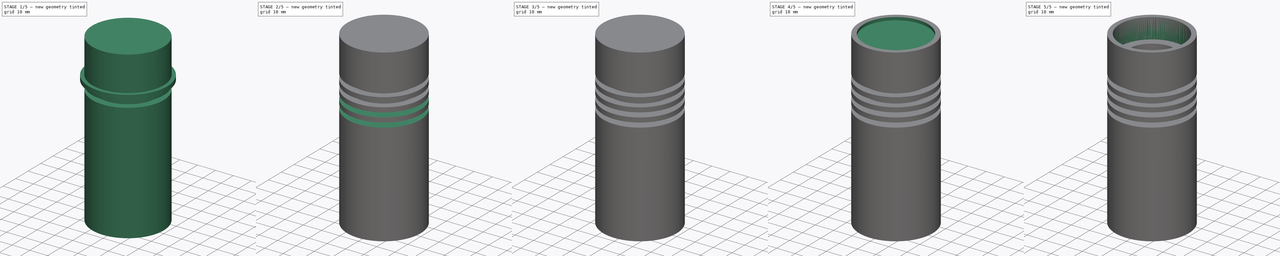
[diagram: build sequence overview — one tinted view per stage of 5, left to right]
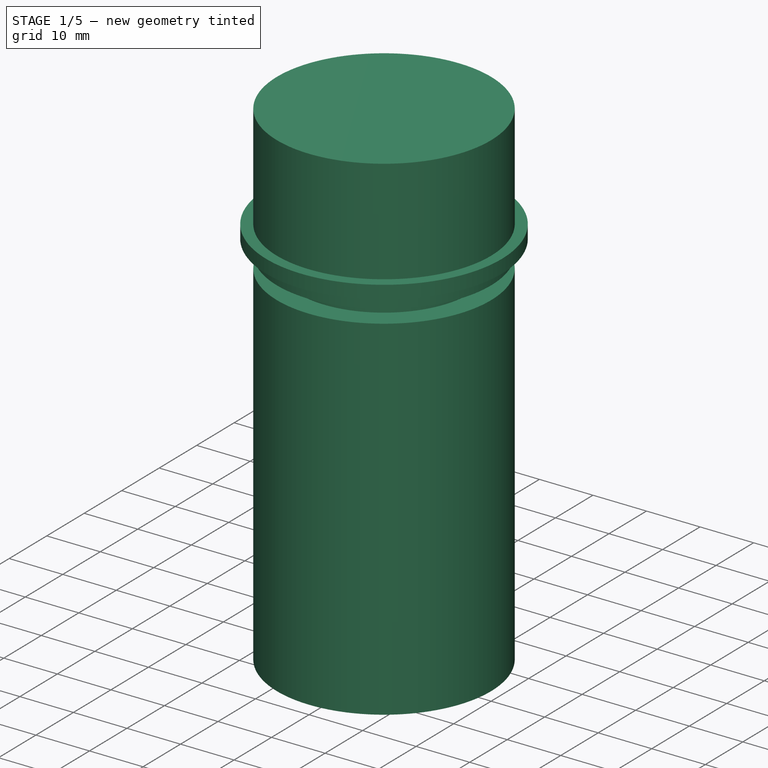
[diagram: stage 1 of 5 — iso view after this stage's code; geometry added in this stage tinted green]
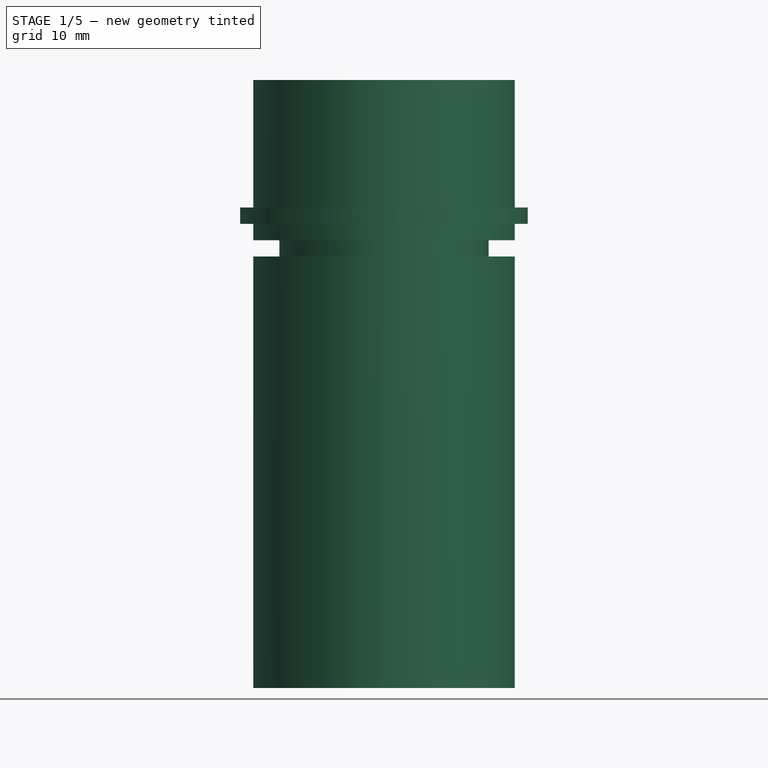
[diagram: stage 1 of 5 — front view after this stage's code; geometry added in this stage tinted green]
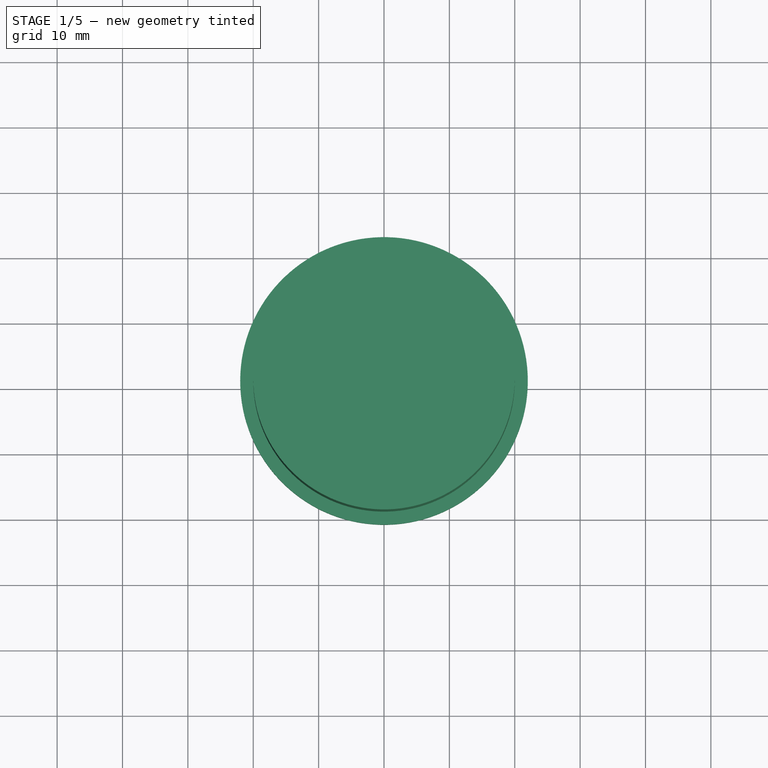
[diagram: stage 1 of 5 — top view after this stage's code; geometry added in this stage tinted green]
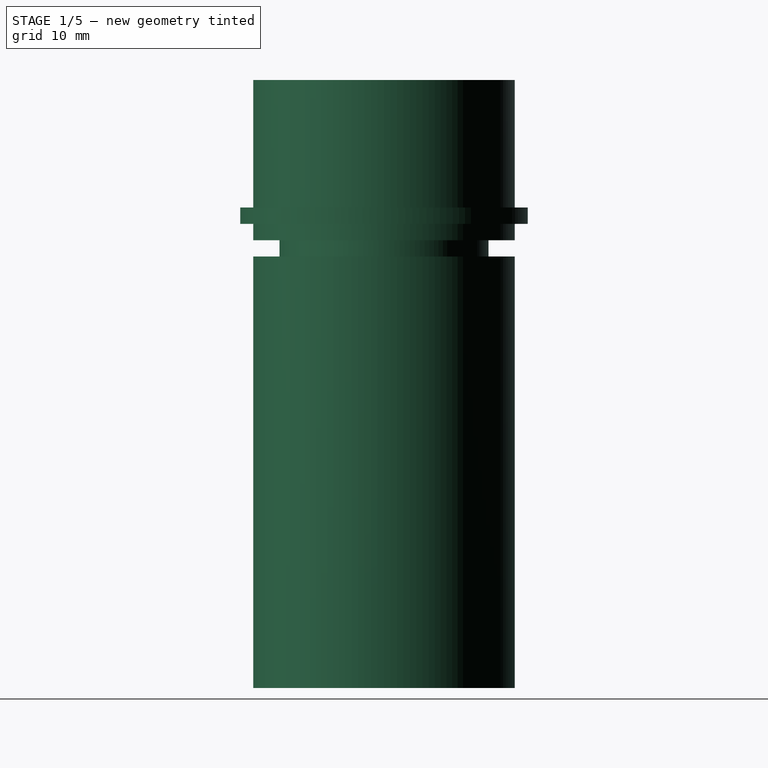
[diagram: stage 1 of 5 — right view after this stage's code; geometry added in this stage tinted green]
FCSTD DOCUMENT  (FreeCAD 0.15R4196 (Git))
Label: Lampenkopf-Backup2
License: CC-BY 3.0
LicenseURL: http://creativecommons.org/licenses/by/3.0/
objects: Sketcher::SketchObject×10, PartDesign::Pad×9, Part::Cut×7, Part::Cylinder×3, Part::MultiFuse×1, Part::Cone×1, PartDesign::Pocket×1
note: 42 computed .brp shape members not serialized (recipe doc carries the construction recipe); baked Part::Feature solids carry a one-line shape summary decoded from their .brp

FEATURE [Part::Cylinder] Cylinder  label="Material"
  Angle = 360
  Height = 93
  Radius = 20
FEATURE [Sketcher::SketchObject] Sketch005
  Placement = pos=(0,0,66) rot=(0,0,1;0rad)
  sketch-geometry (2):
    g0: Circle CenterX=0 CenterY=0 CenterZ=0 NormalX=0 NormalY=0 NormalZ=1 Radius=16
    g1: Circle CenterX=0 CenterY=0 CenterZ=0 NormalX=0 NormalY=0 NormalZ=1 Radius=22
  constraints (4):
    c: Coincident(g1,g0)
    c: Radius(g0) = 16
    c: Radius(g1) = 22
    c: Coincident(g0,g-1)
FEATURE [PartDesign::Pad] Pad005  label="Kuehlrippe 1"
  Length = 2.5
  Length2 = 100
  Placement = pos=(0,0,66) rot=(0,0,1;0rad)
  Sketch = -> Sketch005
  Type = 0
FEATURE [Sketcher::SketchObject] Sketch006
  Placement = pos=(0,0,71) rot=(0,0,1;0rad)
  sketch-geometry (2):
    g0: Circle CenterX=0 CenterY=0 CenterZ=0 NormalX=0 NormalY=0 NormalZ=1 Radius=16
    g1: Circle CenterX=0 CenterY=0 CenterZ=0 NormalX=0 NormalY=0 NormalZ=1 Radius=22
  constraints (4):
    c: Coincident(g1,g0)
    c: Radius(g0) = 16
    c: Radius(g1) = 22
    c: Coincident(g0,g-1)
FEATURE [PartDesign::Pad] Pad006  label="Kuehlrippe 2"
  Length = 2.5
  Length2 = 100
  Placement = pos=(0,0,71) rot=(0,0,1;0rad)
  Sketch = -> Sketch006
  Type = 0
FEATURE [Part::Cut] Cut
  Base = -> Cylinder
  Tool = -> Pad005
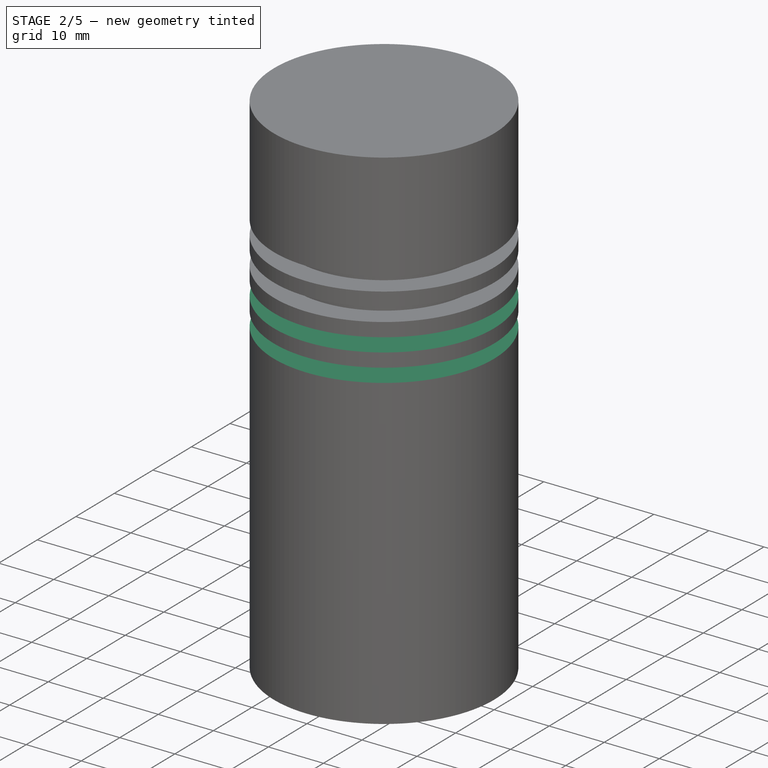
[diagram: stage 2 of 5 — iso view after this stage's code; geometry added in this stage tinted green]
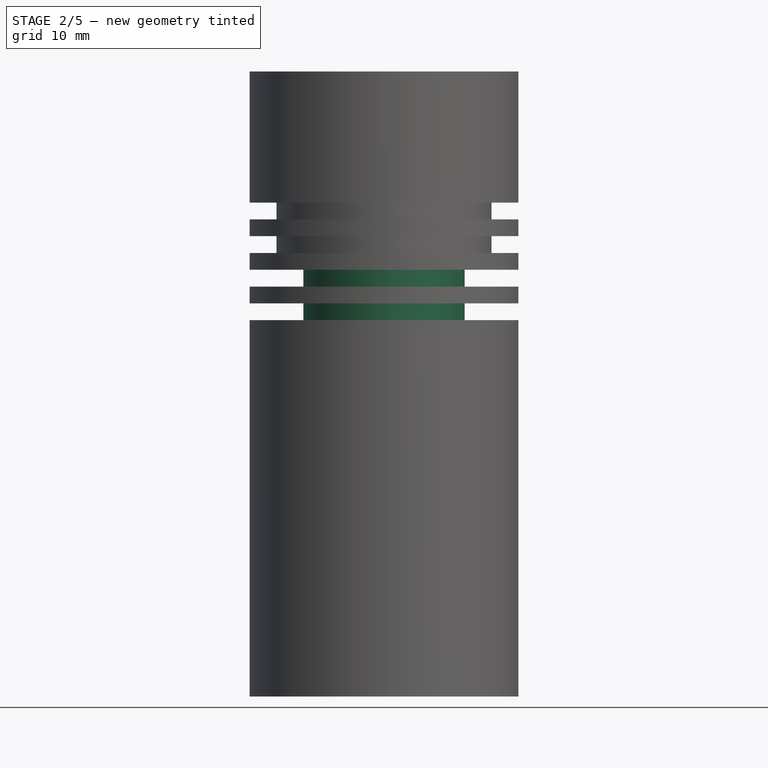
[diagram: stage 2 of 5 — front view after this stage's code; geometry added in this stage tinted green]
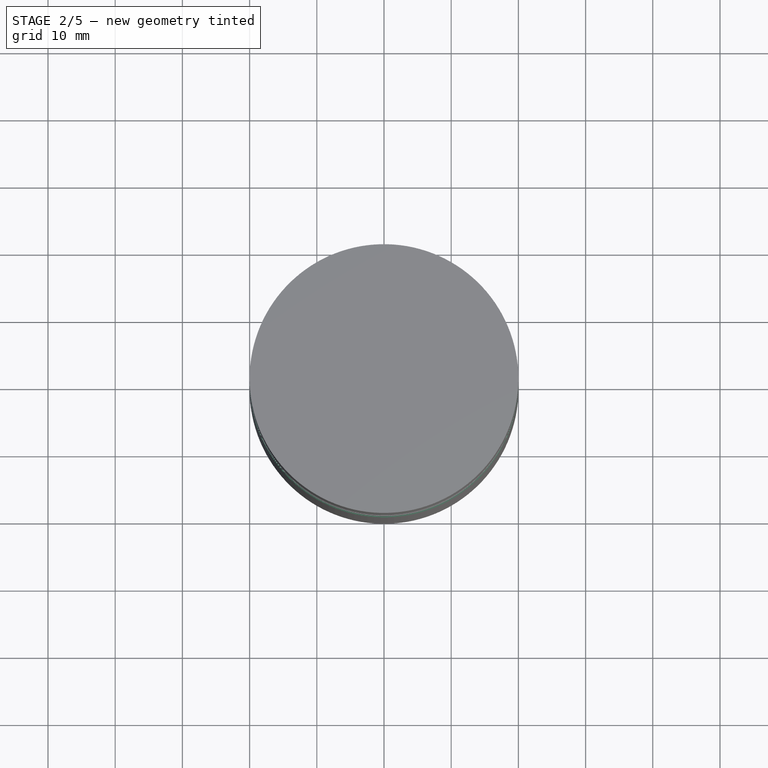
[diagram: stage 2 of 5 — top view after this stage's code; geometry added in this stage tinted green]
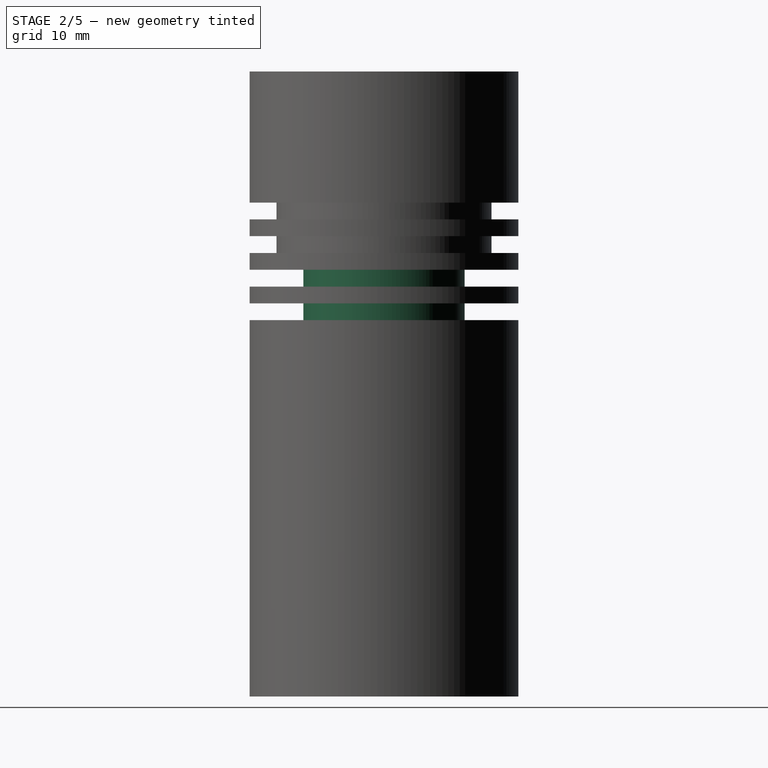
[diagram: stage 2 of 5 — right view after this stage's code; geometry added in this stage tinted green]
FEATURE [Sketcher::SketchObject] Sketch007
  Placement = pos=(0,0,61) rot=(0,0,1;0rad)
  sketch-geometry (2):
    g0: Circle CenterX=0 CenterY=0 CenterZ=0 NormalX=0 NormalY=0 NormalZ=1 Radius=12
    g1: Circle CenterX=0 CenterY=0 CenterZ=0 NormalX=0 NormalY=0 NormalZ=1 Radius=22
  constraints (4):
    c: Coincident(g1,g0)
    c: Radius(g0) = 12
    c: Radius(g1) = 22
    c: Coincident(g0,g-1)
FEATURE [PartDesign::Pad] Pad007  label="Kuehlrippe 3"
  Length = 2.5
  Length2 = 100
  Placement = pos=(0,0,61) rot=(0,0,1;0rad)
  Sketch = -> Sketch007
  Type = 0
FEATURE [Sketcher::SketchObject] Sketch008
  Placement = pos=(0,0,56) rot=(0,0,1;0rad)
  sketch-geometry (2):
    g0: Circle CenterX=0 CenterY=0 CenterZ=0 NormalX=0 NormalY=0 NormalZ=1 Radius=12
    g1: Circle CenterX=0 CenterY=0 CenterZ=0 NormalX=0 NormalY=0 NormalZ=1 Radius=22
  constraints (4):
    c: Coincident(g1,g0)
    c: Radius(g0) = 12
    c: Radius(g1) = 22
    c: Coincident(g0,g-1)
FEATURE [PartDesign::Pad] Pad008  label="Kuehlrippe 4"
  Length = 2.5
  Length2 = 100
  Placement = pos=(0,0,56) rot=(0,0,1;0rad)
  Sketch = -> Sketch008
  Type = 0
FEATURE [Part::Cut] Cut001
  Base = -> Cut
  Tool = -> Pad006
FEATURE [Part::Cut] Cut002
  Base = -> Cut001
  Tool = -> Pad007
FEATURE [Part::Cut] Cut003
  Base = -> Cut002
  Tool = -> Pad008
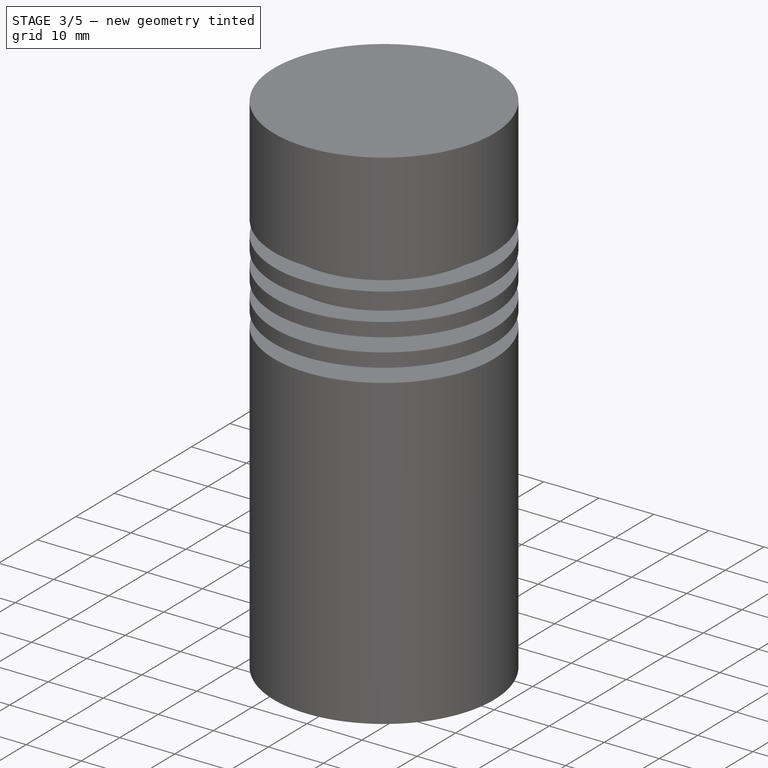
[diagram: stage 3 of 5 — iso view after this stage's code; geometry added in this stage tinted green]
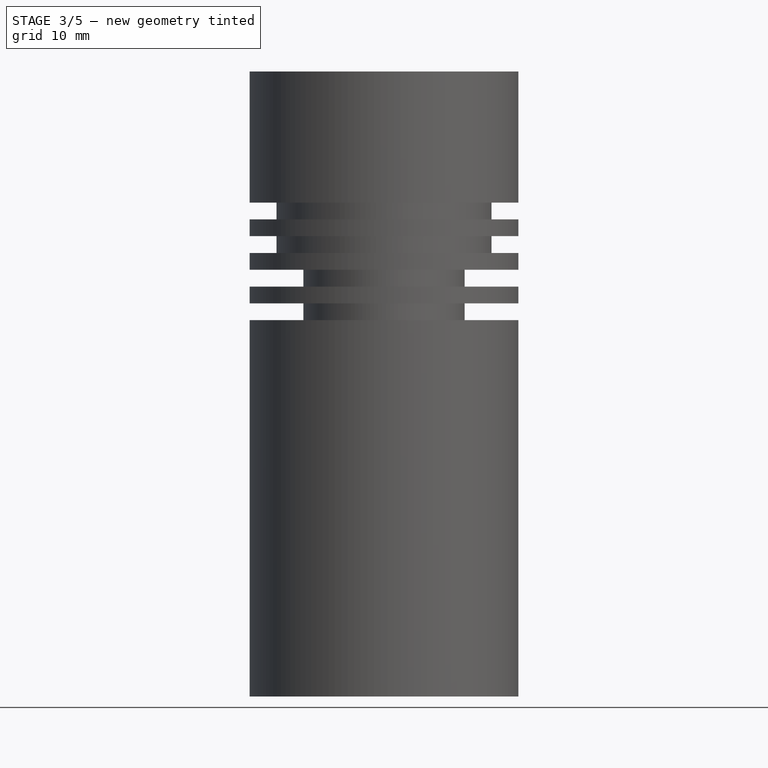
[diagram: stage 3 of 5 — front view after this stage's code; geometry added in this stage tinted green]
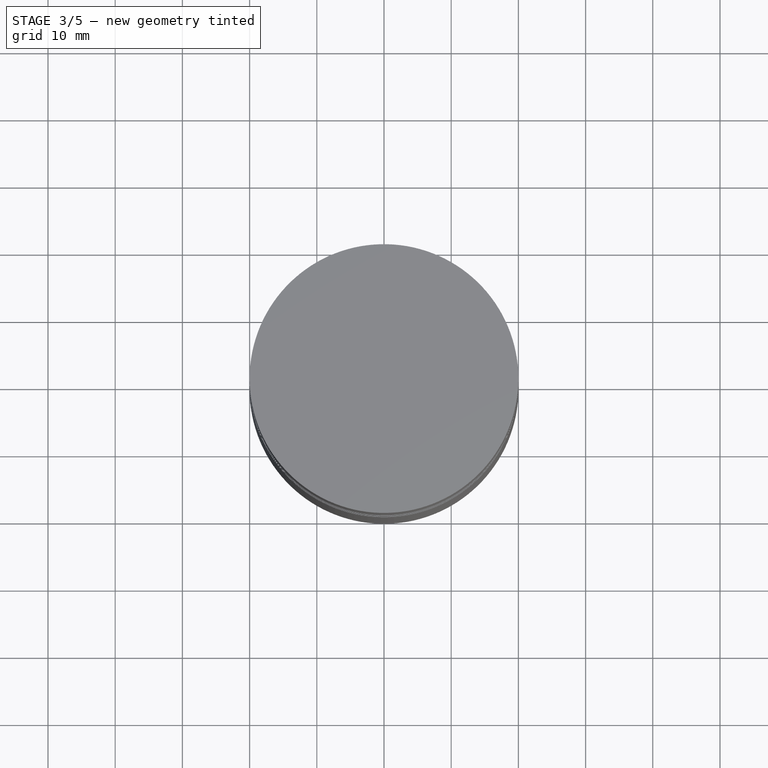
[diagram: stage 3 of 5 — top view after this stage's code; geometry added in this stage tinted green]
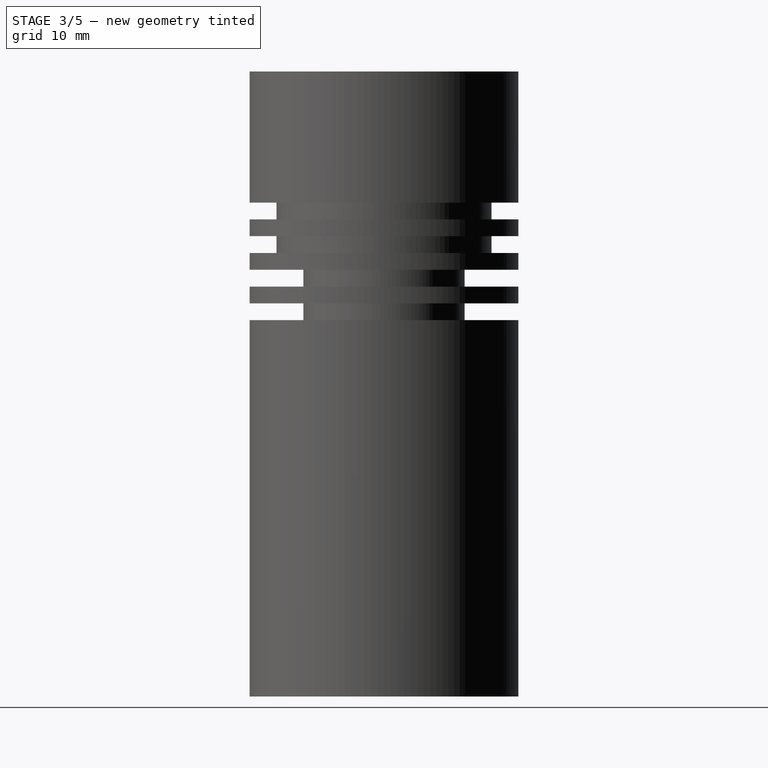
[diagram: stage 3 of 5 — right view after this stage's code; geometry added in this stage tinted green]
FEATURE [Sketcher::SketchObject] Sketch
  sketch-geometry (1):
    g0: Circle CenterX=0 CenterY=0 CenterZ=0 NormalX=0 NormalY=0 NormalZ=1 Radius=18.7
  constraints (2):
    c: Coincident(g0,g-1)
    c: Radius(g0) = 18.7
FEATURE [PartDesign::Pad] Pad  label="Aufnahme ORinge"
  Length = 24
  Length2 = 100
  Sketch = -> Sketch
  Type = 0
FEATURE [Sketcher::SketchObject] Sketch001
  Placement = pos=(0,0,24) rot=(0,0,1;0rad)
  Support = -> Pad [Face3]
  sketch-geometry (1):
    g0: Circle CenterX=0 CenterY=0 CenterZ=0 NormalX=0 NormalY=0 NormalZ=1 Radius=16
  constraints (2):
    c: Coincident(g0,g-1)
    c: Radius(g0) = 16
FEATURE [PartDesign::Pad] Pad001  label="InnenGewinde"
  Length = 30
  Length2 = 100
  Sketch = -> Sketch001
  Type = 0
FEATURE [Sketcher::SketchObject] Sketch002
  Placement = pos=(0,0,54) rot=(0,0,1;0rad)
  Support = -> Pad001 [Face5]
  sketch-geometry (1):
    g0: Circle CenterX=-9.2 CenterY=0 CenterZ=0 NormalX=0 NormalY=0 NormalZ=1 Radius=1
  constraints (3):
    c: PointOnObject(g0,g-1)
    c: Radius(g0) = 1
    c: DistanceX(g-1,g0) = -9.2
FEATURE [PartDesign::Pad] Pad002  label="Bohrung Kabeldurchführung"
  Length = 12
  Length2 = 100
  Sketch = -> Sketch002
  Type = 0
FEATURE [Sketcher::SketchObject] Sketch003
  Placement = pos=(0,0,66) rot=(0,0,1;0rad)
  Support = -> Pad002 [Face7]
  sketch-geometry (1):
    g0: Circle CenterX=0 CenterY=0 CenterZ=0 NormalX=0 NormalY=0 NormalZ=1 Radius=13
  constraints (2):
    c: Radius(g0) = 13
    c: Coincident(g0,g-1)
FEATURE [PartDesign::Pad] Pad003  label="Raum Reflektor und LED"
  Length = 16
  Length2 = 100
  Sketch = -> Sketch003
  Type = 0
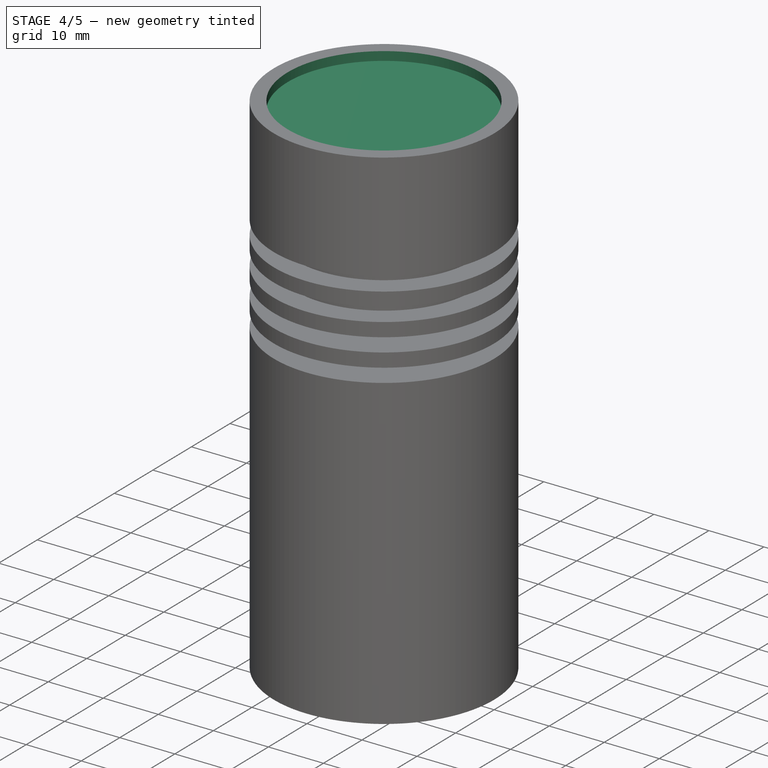
[diagram: stage 4 of 5 — iso view after this stage's code; geometry added in this stage tinted green]
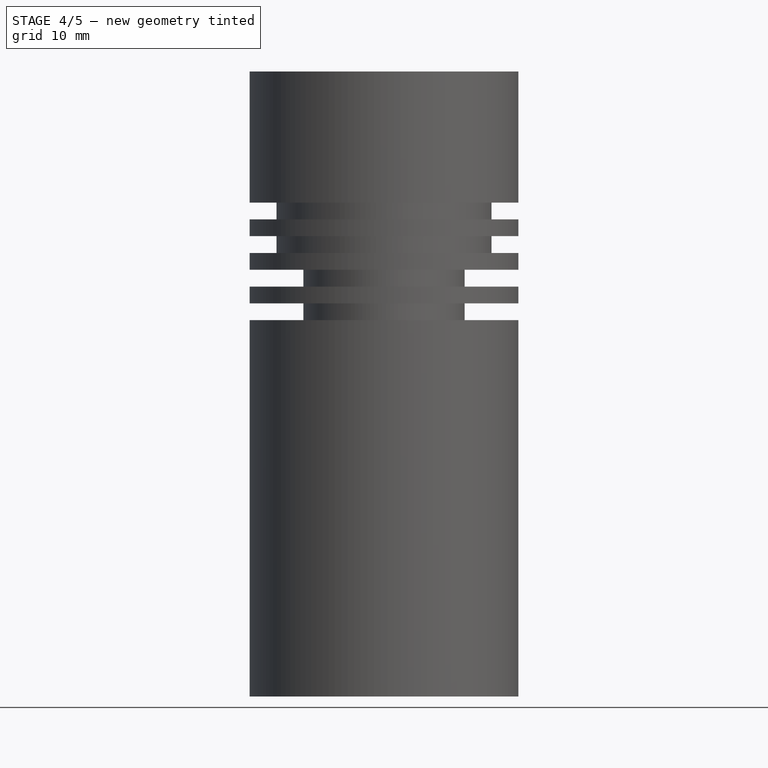
[diagram: stage 4 of 5 — front view after this stage's code; geometry added in this stage tinted green]
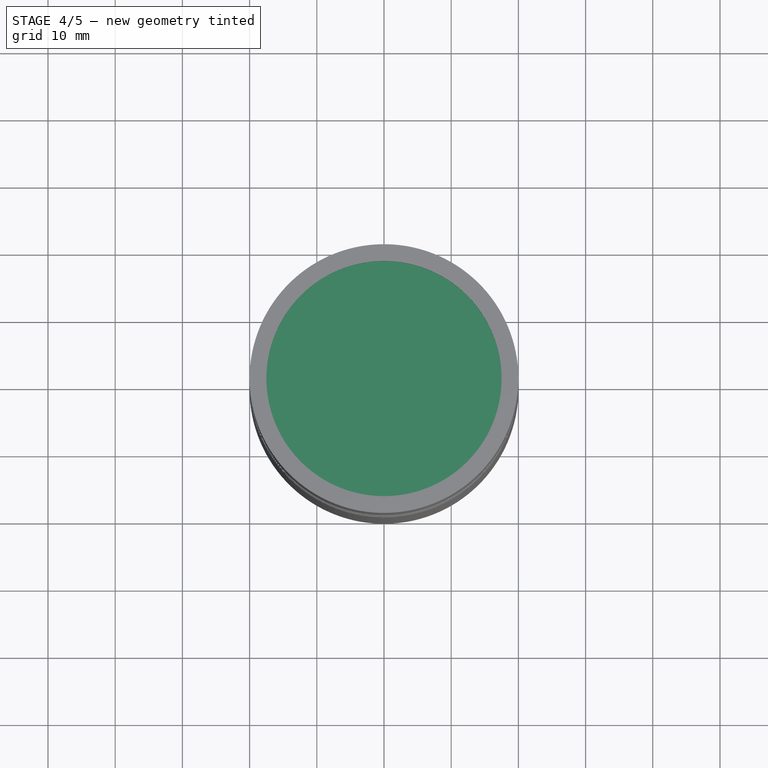
[diagram: stage 4 of 5 — top view after this stage's code; geometry added in this stage tinted green]
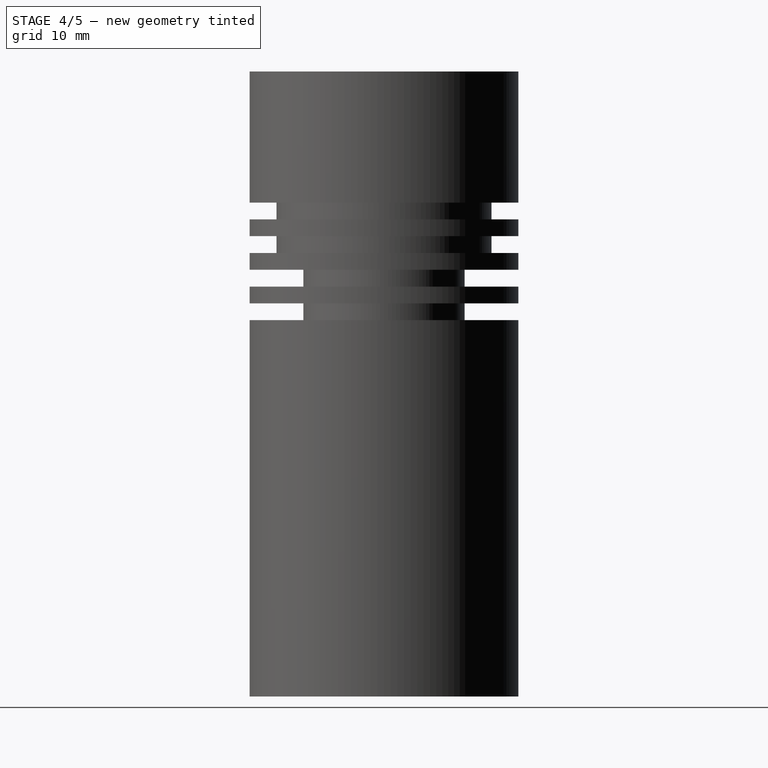
[diagram: stage 4 of 5 — right view after this stage's code; geometry added in this stage tinted green]
FEATURE [Sketcher::SketchObject] Sketch004
  Placement = pos=(0,0,82) rot=(0,0,1;0rad)
  Support = -> Pad003 [Face9]
  sketch-geometry (1):
    g0: Circle CenterX=0 CenterY=0 CenterZ=0 NormalX=0 NormalY=0 NormalZ=1 Radius=17.5
  constraints (2):
    c: Radius(g0) = 17.5
    c: Coincident(g0,g-1)
FEATURE [PartDesign::Pad] Pad004  label="Raum Glas"
  Length = 11
  Length2 = 120
  Sketch = -> Sketch004
  Type = 0
FEATURE [Part::Cylinder] Cylinder001  label="Nut Radial"
  Angle = 360
  Height = 2.2
  Placement = pos=(0,0,84) rot=(0,0,1;0rad)
  Radius = 18.6
FEATURE [Part::Cylinder] Cylinder002  label="Nut Sprengring RB35"
  Angle = 360
  Height = 1.4
  Placement = pos=(0,0,90) rot=(0,0,1;0rad)
  Radius = 18.75
FEATURE [Part::Cut] Cut010
  Base = -> Cut003
  Tool = -> Pad004
FEATURE [Part::Cut] Cut011
  Base = -> Cut010
  Tool = -> Cylinder001
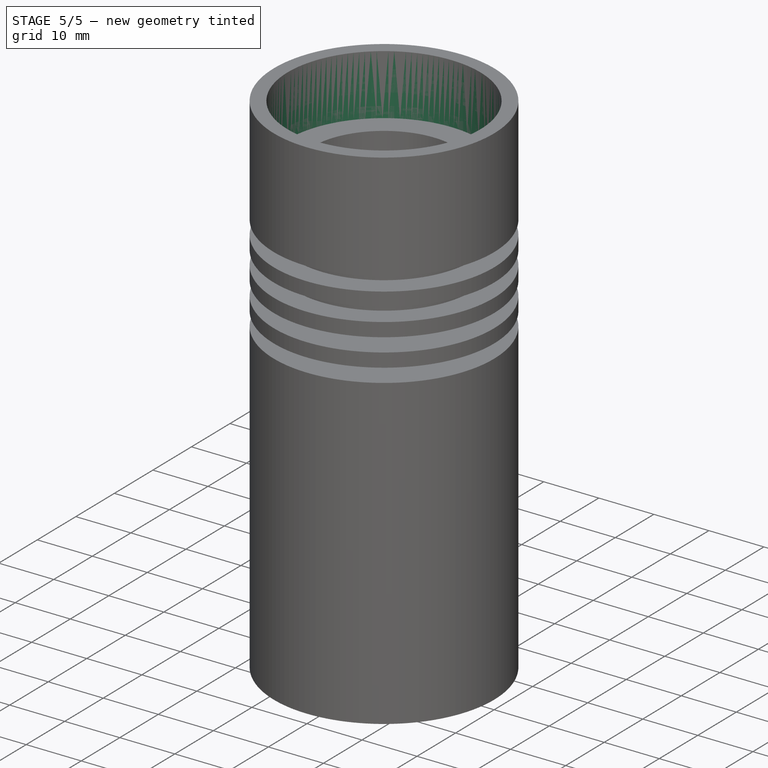
[diagram: stage 5 of 5 — iso view after this stage's code; geometry added in this stage tinted green]
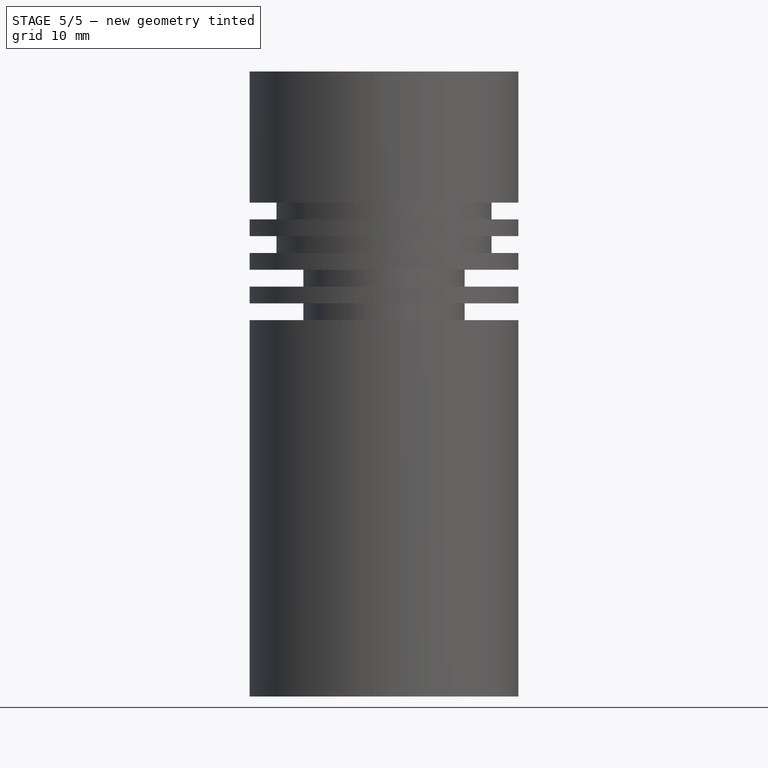
[diagram: stage 5 of 5 — front view after this stage's code; geometry added in this stage tinted green]
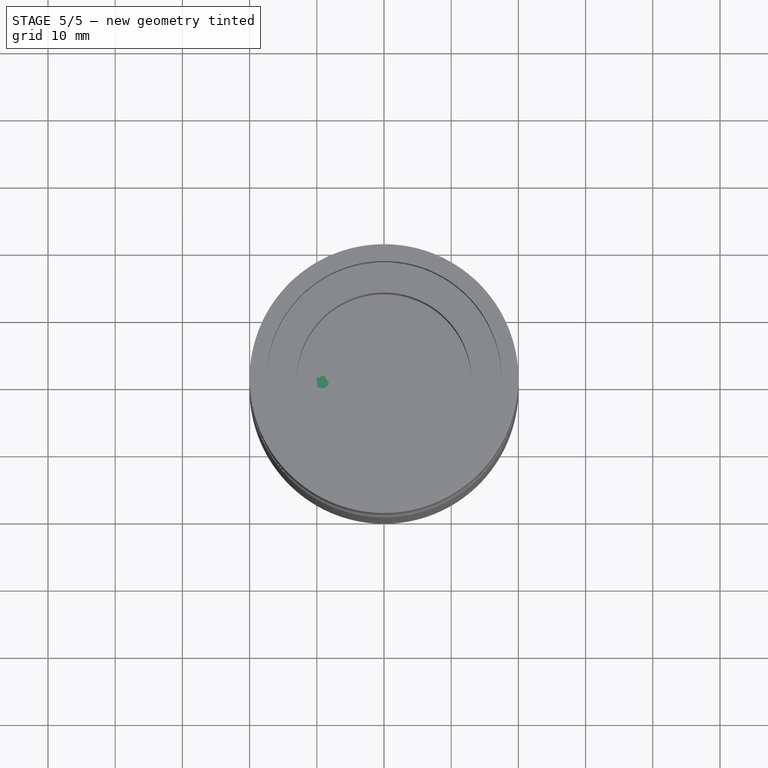
[diagram: stage 5 of 5 — top view after this stage's code; geometry added in this stage tinted green]
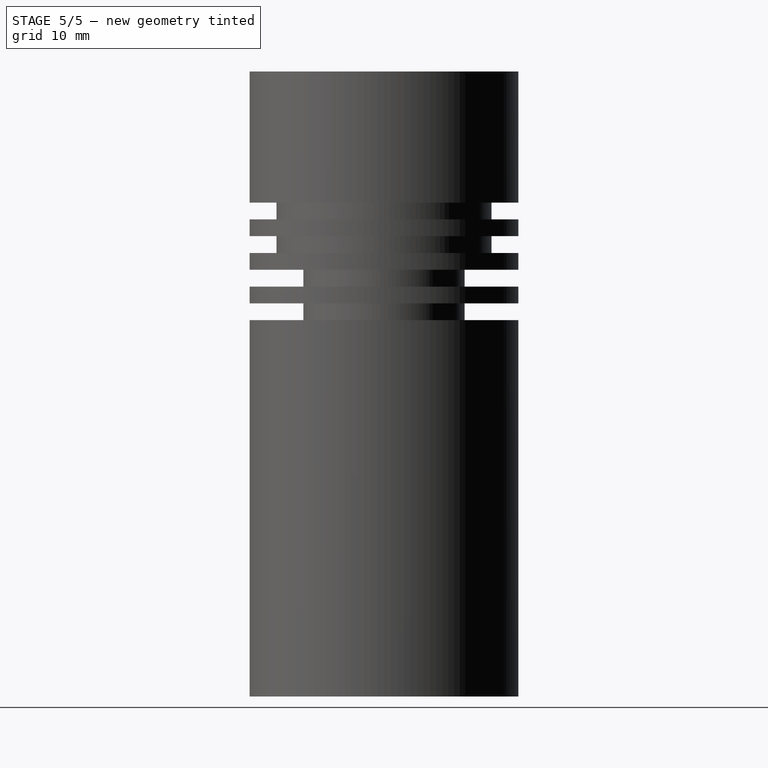
[diagram: stage 5 of 5 — right view after this stage's code; geometry added in this stage tinted green]
FEATURE [Part::MultiFuse] Fusion  label="Aushöhlung Gewindeaufnahme"
  Shapes = -> [Pad002]
FEATURE [Part::Cone] Cone001
  Angle = 360
  Height = 3
  Radius1 = 19.5
  Radius2 = 18.6
FEATURE [Sketcher::SketchObject] Sketch012
  Placement = pos=(0,0,82) rot=(0,0,1;0rad)
  Support = -> Cut010 [Face15]
  sketch-geometry (4):
    g0: Circle CenterX=0 CenterY=0 CenterZ=0 NormalX=0 NormalY=0 NormalZ=1 Radius=14.7
    g1: GeomPoint [constr] X=-14.7 Y=0 Z=0
    g2: Circle CenterX=0 CenterY=0 CenterZ=0 NormalX=0 NormalY=0 NormalZ=1 Radius=17.5
    g3: GeomPoint [constr] X=-17.5 Y=0 Z=0
  constraints (8):
    c: PointOnObject(g0,g-1)
    c: PointOnObject(g1,g0)
    c: PointOnObject(g1,g-1)
    c: Coincident(g2,g0)
    c: PointOnObject(g3,g2)
    c: PointOnObject(g3,g-1)
    c: DistanceX(g1,g3) = -2.8
    c: Coincident(g0,g-1)
FEATURE [PartDesign::Pocket] Pocket  label="Nut Axial"
  Length = 1.5
  Sketch = -> Sketch012
  Type = 0
FEATURE [Part::Cut] Cut012
  Base = -> Cut011
  Tool = -> Cylinder002
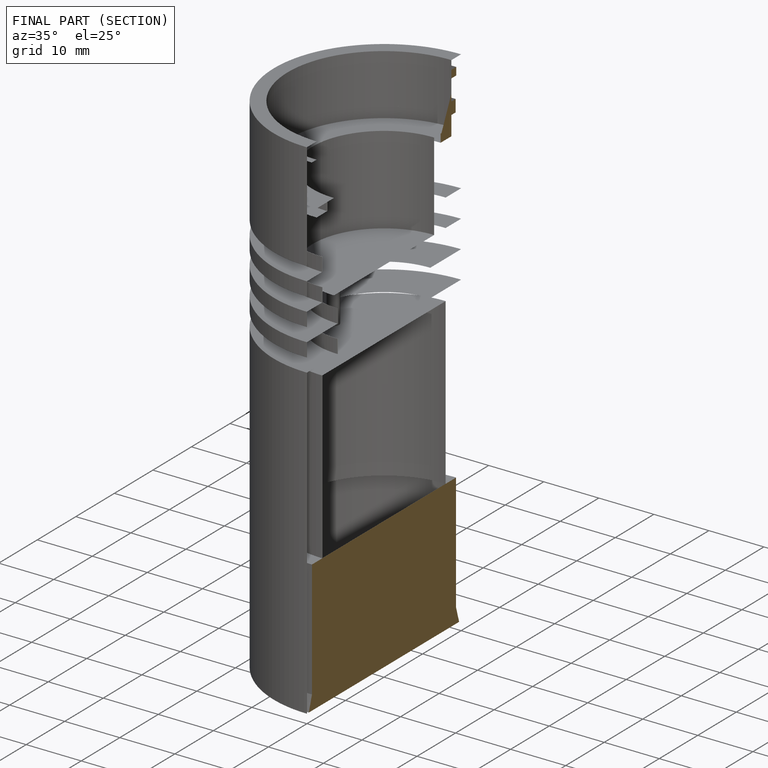
[diagram: finished part — half-section view (interior)]
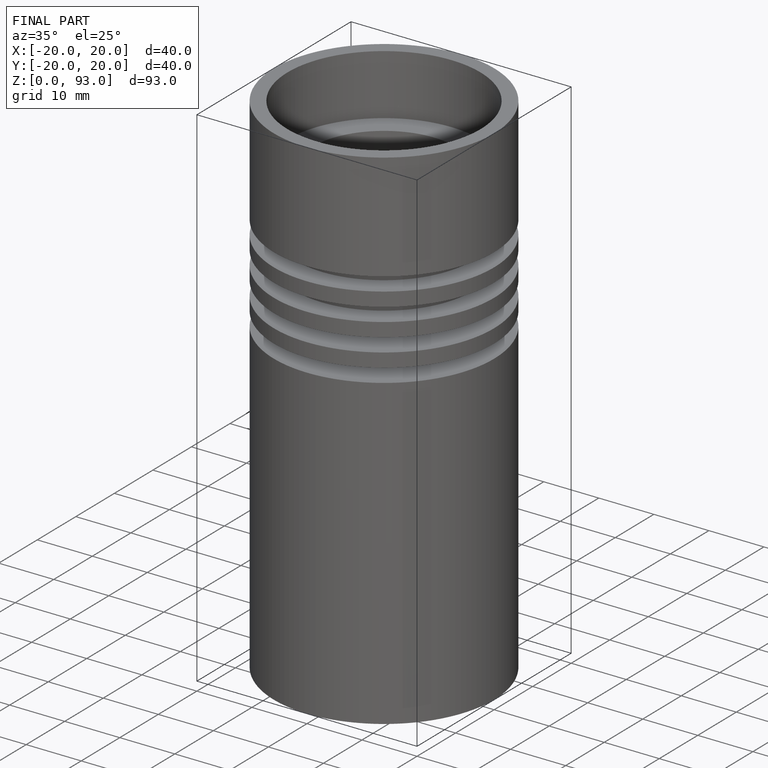
[diagram: finished part — iso view with bounding-box wireframe]
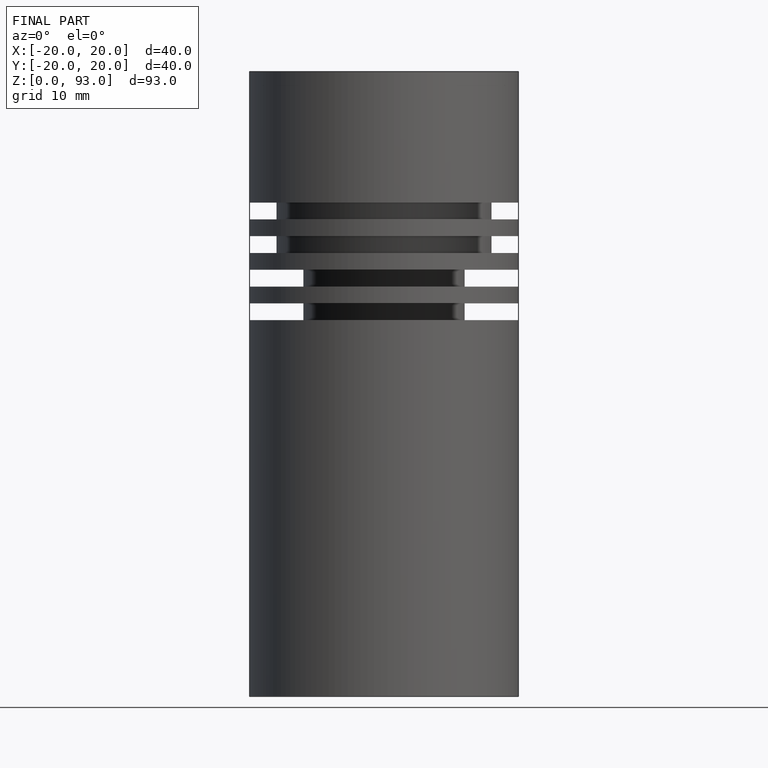
[diagram: finished part — front view with bounding-box wireframe]
